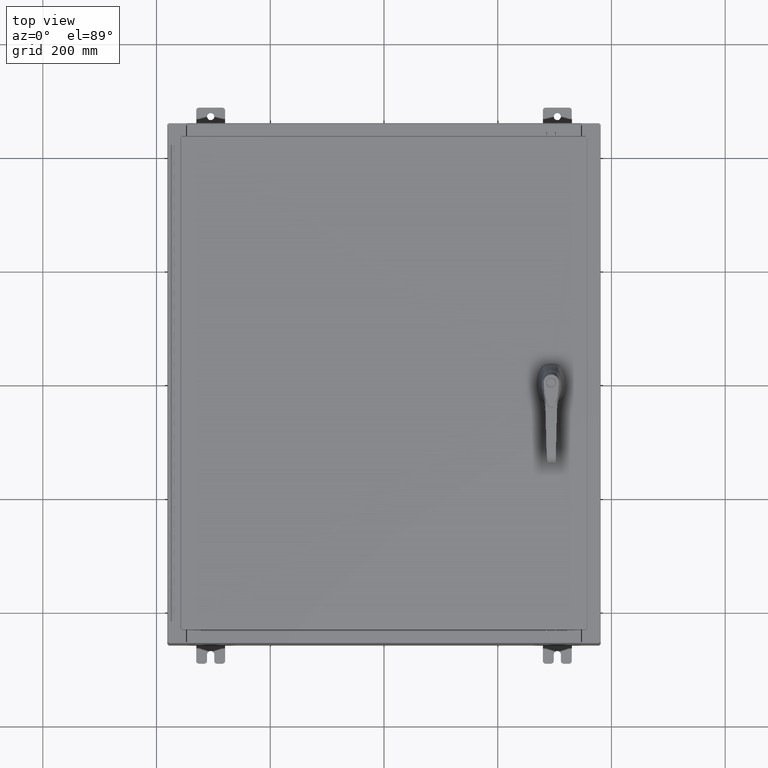
[diagram: clean part render]
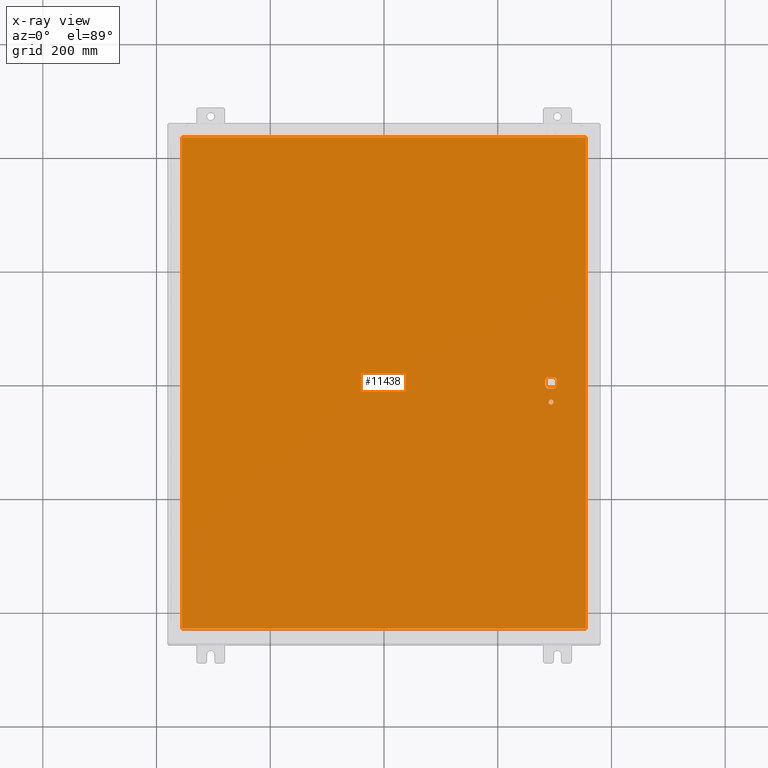
[diagram: x-ray — body ghosted, one internal face saturated and labeled with its STEP entity id]
A machine part, top view, then the same camera in x-ray: the body is ghosted and one INTERNAL B-rep face — a face not visible from any outside direction — is saturated and labeled: STEP entity #11438.
In plain terms, the highlighted planar face has unit normal (0, 0, -1).
Its self-contained STEP definition (entity closure, byte-faithful):
#347 = AXIS2_PLACEMENT_3D ( 'NONE', #56468, #122920, #66020 ) ;
#1404 = CIRCLE ( 'NONE', #32597, 0.1715000000000011500 ) ;
#1803 = CARTESIAN_POINT ( 'NONE',  ( 11.98099999999992000, 0.2002273707563075900, -0.07470000000000003000 ) ) ;
#2066 = EDGE_LOOP ( 'NONE', ( #65987, #48802, #47436, #47516, #116948, #107065, #111203, #35459 ) ) ;
#2647 = EDGE_LOOP ( 'NONE', ( #40714, #122168, #64566, #56022 ) ) ;
#3202 = DIRECTION ( 'NONE',  ( -0.0000000000000000000, -0.0000000000000000000, 1.000000000000000000 ) ) ;
#3658 = DIRECTION ( 'NONE',  ( -1.000000000000000000, -5.329070518200740300E-015, 0.0000000000000000000 ) ) ;
#4432 = VECTOR ( 'NONE', #84786, 39.37007874015748100 ) ;
#4434 = VERTEX_POINT ( 'NONE', #77992 ) ;
#4961 = EDGE_CURVE ( 'NONE', #81938, #92643, #69325, .T. ) ;
#5012 = VECTOR ( 'NONE', #29569, 39.37007874015748100 ) ;
#5488 = CARTESIAN_POINT ( 'NONE',  ( 0.0000000000000000000, -0.4029999999999252000, -0.07470000000000003000 ) ) ;
#7250 = AXIS2_PLACEMENT_3D ( 'NONE', #74835, #8933, #75253 ) ;
#7652 = DIRECTION ( 'NONE',  ( 1.000000000000000000, -0.0000000000000000000, -0.0000000000000000000 ) ) ;
#8933 = DIRECTION ( 'NONE',  ( 0.0000000000000000000, 0.0000000000000000000, -1.000000000000000000 ) ) ;
#9518 = EDGE_CURVE ( 'NONE', #81853, #81938, #36594, .T. ) ;
#9599 = CARTESIAN_POINT ( 'NONE',  ( 11.37777262924368300, -0.4029999999999250300, -0.07470000000000003000 ) ) ;
#11318 = VERTEX_POINT ( 'NONE', #63265 ) ;
#11438 = ADVANCED_FACE ( 'NONE', ( #34816, #82291, #104577 ), #37074, .T. ) ;
#11744 = CARTESIAN_POINT ( 'NONE',  ( 11.74949999999999400, -1.338000000000000100, -0.07470000000000003000 ) ) ;
#12354 = VERTEX_POINT ( 'NONE', #50561 ) ;
#14154 = VERTEX_POINT ( 'NONE', #19101 ) ;
#15005 = DIRECTION ( 'NONE',  ( 1.000000000000000000, 0.0000000000000000000, 0.0000000000000000000 ) ) ;
#16699 = DIRECTION ( 'NONE',  ( -0.0000000000000000000, -0.0000000000000000000, 1.000000000000000000 ) ) ;
#17695 = AXIS2_PLACEMENT_3D ( 'NONE', #73480, #16699, #82972 ) ;
#18466 = VERTEX_POINT ( 'NONE', #1803 ) ;
#18478 = CARTESIAN_POINT ( 'NONE',  ( 0.0000000000000000000, 0.4029999999999252000, -0.07470000000000003000 ) ) ;
#19101 = CARTESIAN_POINT ( 'NONE',  ( 11.37777262924368300, 0.4029999999999252000, -0.07470000000000003000 ) ) ;
#21827 = EDGE_CURVE ( 'NONE', #43509, #4434, #45252, .T. ) ;
#23674 = LINE ( 'NONE', #18478, #4432 ) ;
#27109 = DIRECTION ( 'NONE',  ( 0.0000000000000000000, 1.000000000000000000, 0.0000000000000000000 ) ) ;
#29569 = DIRECTION ( 'NONE',  ( 0.0000000000000000000, -1.000000000000000000, 0.0000000000000000000 ) ) ;
#30985 = VERTEX_POINT ( 'NONE', #36408 ) ;
#31888 = CARTESIAN_POINT ( 'NONE',  ( 11.57799999999999400, -1.338000000000000100, -0.07470000000000003000 ) ) ;
#32597 = AXIS2_PLACEMENT_3D ( 'NONE', #31888, #98212, #41451 ) ;
#34365 = AXIS2_PLACEMENT_3D ( 'NONE', #43802, #110218, #53318 ) ;
#34816 = FACE_BOUND ( 'NONE', #101219, .T. ) ;
#35166 = VECTOR ( 'NONE', #119315, 39.37007874015748100 ) ;
#35459 = ORIENTED_EDGE ( 'NONE', *, *, #21827, .T. ) ;
#36408 = CARTESIAN_POINT ( 'NONE',  ( 11.17500000000006600, 0.2002273707563075900, -0.07470000000000003000 ) ) ;
#36594 = LINE ( 'NONE', #121337, #58903 ) ;
#36649 = CARTESIAN_POINT ( 'NONE',  ( 13.99029999999999200, -17.00630000000000000, -0.07470000000000019700 ) ) ;
#37074 = PLANE ( 'NONE',  #7250 ) ;
#37365 = EDGE_CURVE ( 'NONE', #11318, #75518, #1404, .T. ) ;
#39331 = LINE ( 'NONE', #45307, #106120 ) ;
#40714 = ORIENTED_EDGE ( 'NONE', *, *, #4961, .F. ) ;
#40832 = EDGE_CURVE ( 'NONE', #18466, #48096, #42467, .T. ) ;
#41451 = DIRECTION ( 'NONE',  ( -1.000000000000000000, 0.0000000000000000000, 0.0000000000000000000 ) ) ;
#42467 = CIRCLE ( 'NONE', #17695, 0.4499999999999168000 ) ;
#43509 = VERTEX_POINT ( 'NONE', #9599 ) ;
#43802 = CARTESIAN_POINT ( 'NONE',  ( 11.57799999999999400, 0.0000000000000000000, -0.07470000000000003000 ) ) ;
#44021 = CARTESIAN_POINT ( 'NONE',  ( 13.99029999999999200, 17.00630000000000300, -0.07470000000000000300 ) ) ;
#44722 = CARTESIAN_POINT ( 'NONE',  ( 11.17500000000006600, -0.2002273707563079800, -0.07470000000000003000 ) ) ;
#45252 = LINE ( 'NONE', #5488, #118064 ) ;
#45307 = CARTESIAN_POINT ( 'NONE',  ( 11.98099999999992000, 6.538620706741751200E-014, -0.07470000000000003000 ) ) ;
#45751 = CIRCLE ( 'NONE', #34365, 0.4499999999999168000 ) ;
#46312 = CARTESIAN_POINT ( 'NONE',  ( -13.99030000000000700, -17.00630000000000000, -0.07470000000000000300 ) ) ;
#47436 = ORIENTED_EDGE ( 'NONE', *, *, #40832, .T. ) ;
#47516 = ORIENTED_EDGE ( 'NONE', *, *, #70602, .T. ) ;
#48096 = VERTEX_POINT ( 'NONE', #93935 ) ;
#48802 = ORIENTED_EDGE ( 'NONE', *, *, #55528, .F. ) ;
#50561 = CARTESIAN_POINT ( 'NONE',  ( -13.99030000000000700, 17.00630000000000300, -0.07470000000000000300 ) ) ;
#52645 = DIRECTION ( 'NONE',  ( -1.000000000000000000, -0.0000000000000000000, -0.0000000000000000000 ) ) ;
#53318 = DIRECTION ( 'NONE',  ( -1.000000000000000000, -1.776356839400246700E-015, 0.0000000000000000000 ) ) ;
#55528 = EDGE_CURVE ( 'NONE', #18466, #89464, #39331, .T. ) ;
#56022 = ORIENTED_EDGE ( 'NONE', *, *, #107998, .F. ) ;
#56468 = CARTESIAN_POINT ( 'NONE',  ( 11.57799999999999400, -1.338000000000000100, -0.07470000000000003000 ) ) ;
#58903 = VECTOR ( 'NONE', #7652, 39.37007874015748100 ) ;
#59962 = CARTESIAN_POINT ( 'NONE',  ( 11.57799999999999400, 0.0000000000000000000, -0.07470000000000003000 ) ) ;
#60408 = DIRECTION ( 'NONE',  ( -0.0000000000000000000, -0.0000000000000000000, 1.000000000000000000 ) ) ;
#62419 = CARTESIAN_POINT ( 'NONE',  ( -13.99030000000000700, 17.00630000000000000, -0.07470000000000019700 ) ) ;
#63265 = CARTESIAN_POINT ( 'NONE',  ( 11.40649999999999200, -1.338000000000000100, -0.07470000000000003000 ) ) ;
#64405 = DIRECTION ( 'NONE',  ( 5.457491617345625000E-015, -1.000000000000000000, 0.0000000000000000000 ) ) ;
#64566 = ORIENTED_EDGE ( 'NONE', *, *, #72705, .F. ) ;
#65987 = ORIENTED_EDGE ( 'NONE', *, *, #82132, .T. ) ;
#66020 = DIRECTION ( 'NONE',  ( -1.000000000000000000, 0.0000000000000000000, 0.0000000000000000000 ) ) ;
#66342 = VECTOR ( 'NONE', #27109, 39.37007874015748100 ) ;
#69325 = LINE ( 'NONE', #36649, #66342 ) ;
#69503 = DIRECTION ( 'NONE',  ( -1.000000000000000000, -1.776356839400246700E-015, 0.0000000000000000000 ) ) ;
#70273 = EDGE_CURVE ( 'NONE', #71459, #43509, #45751, .T. ) ;
#70602 = EDGE_CURVE ( 'NONE', #48096, #14154, #23674, .T. ) ;
#70734 = CARTESIAN_POINT ( 'NONE',  ( 11.98099999999992000, -0.2002273707563067300, -0.07470000000000003000 ) ) ;
#71459 = VERTEX_POINT ( 'NONE', #44722 ) ;
#72705 = EDGE_CURVE ( 'NONE', #12354, #81853, #88652, .T. ) ;
#72908 = EDGE_CURVE ( 'NONE', #30985, #71459, #108909, .T. ) ;
#73480 = CARTESIAN_POINT ( 'NONE',  ( 11.57799999999999400, 0.0000000000000000000, -0.07470000000000003000 ) ) ;
#74761 = AXIS2_PLACEMENT_3D ( 'NONE', #117321, #60408, #3658 ) ;
#74835 = CARTESIAN_POINT ( 'NONE',  ( 0.0000000000000000000, 0.0000000000000000000, -0.07470000000000000300 ) ) ;
#75253 = DIRECTION ( 'NONE',  ( -1.000000000000000000, 0.0000000000000000000, -0.0000000000000000000 ) ) ;
#75518 = VERTEX_POINT ( 'NONE', #11744 ) ;
#77992 = CARTESIAN_POINT ( 'NONE',  ( 11.77822737075630300, -0.4029999999999252000, -0.07470000000000003000 ) ) ;
#81141 = CIRCLE ( 'NONE', #74761, 0.4499999999999168000 ) ;
#81853 = VERTEX_POINT ( 'NONE', #46312 ) ;
#81938 = VERTEX_POINT ( 'NONE', #95199 ) ;
#82132 = EDGE_CURVE ( 'NONE', #4434, #89464, #100276, .T. ) ;
#82291 = FACE_OUTER_BOUND ( 'NONE', #2647, .T. ) ;
#82972 = DIRECTION ( 'NONE',  ( -1.000000000000000000, -5.329070518200740300E-015, 0.0000000000000000000 ) ) ;
#84743 = AXIS2_PLACEMENT_3D ( 'NONE', #59962, #3202, #69503 ) ;
#84786 = DIRECTION ( 'NONE',  ( -1.000000000000000000, 0.0000000000000000000, 0.0000000000000000000 ) ) ;
#86493 = CIRCLE ( 'NONE', #347, 0.1715000000000011500 ) ;
#87657 = EDGE_CURVE ( 'NONE', #14154, #30985, #81141, .T. ) ;
#88652 = LINE ( 'NONE', #62419, #35166 ) ;
#89464 = VERTEX_POINT ( 'NONE', #70734 ) ;
#91892 = EDGE_CURVE ( 'NONE', #75518, #11318, #86493, .T. ) ;
#92643 = VERTEX_POINT ( 'NONE', #44021 ) ;
#93935 = CARTESIAN_POINT ( 'NONE',  ( 11.77822737075630300, 0.4029999999999250300, -0.07470000000000003000 ) ) ;
#95199 = CARTESIAN_POINT ( 'NONE',  ( 13.99029999999999200, -17.00630000000000000, -0.07470000000000000300 ) ) ;
#95892 = CARTESIAN_POINT ( 'NONE',  ( 11.17500000000006600, 0.0000000000000000000, -0.07470000000000003000 ) ) ;
#97969 = LINE ( 'NONE', #109962, #120331 ) ;
#98212 = DIRECTION ( 'NONE',  ( -0.0000000000000000000, -0.0000000000000000000, 1.000000000000000000 ) ) ;
#100276 = CIRCLE ( 'NONE', #84743, 0.4499999999999168000 ) ;
#101219 = EDGE_LOOP ( 'NONE', ( #117860, #112864 ) ) ;
#104577 = FACE_BOUND ( 'NONE', #2066, .T. ) ;
#106120 = VECTOR ( 'NONE', #64405, 39.37007874015748100 ) ;
#107065 = ORIENTED_EDGE ( 'NONE', *, *, #72908, .T. ) ;
#107998 = EDGE_CURVE ( 'NONE', #92643, #12354, #97969, .T. ) ;
#108909 = LINE ( 'NONE', #95892, #5012 ) ;
#109962 = CARTESIAN_POINT ( 'NONE',  ( 13.99029999999999200, 17.00630000000000300, -0.07470000000000129300 ) ) ;
#110218 = DIRECTION ( 'NONE',  ( -0.0000000000000000000, -0.0000000000000000000, 1.000000000000000000 ) ) ;
#111203 = ORIENTED_EDGE ( 'NONE', *, *, #70273, .T. ) ;
#112864 = ORIENTED_EDGE ( 'NONE', *, *, #37365, .T. ) ;
#116948 = ORIENTED_EDGE ( 'NONE', *, *, #87657, .T. ) ;
#117321 = CARTESIAN_POINT ( 'NONE',  ( 11.57799999999999400, 0.0000000000000000000, -0.07470000000000003000 ) ) ;
#117860 = ORIENTED_EDGE ( 'NONE', *, *, #91892, .T. ) ;
#118064 = VECTOR ( 'NONE', #15005, 39.37007874015748100 ) ;
#119315 = DIRECTION ( 'NONE',  ( 0.0000000000000000000, -1.000000000000000000, 0.0000000000000000000 ) ) ;
#120331 = VECTOR ( 'NONE', #52645, 39.37007874015748100 ) ;
#121337 = CARTESIAN_POINT ( 'NONE',  ( -13.99030000000000700, -17.00630000000000000, -0.07470000000000019700 ) ) ;
#122168 = ORIENTED_EDGE ( 'NONE', *, *, #9518, .F. ) ;
#122920 = DIRECTION ( 'NONE',  ( -0.0000000000000000000, -0.0000000000000000000, 1.000000000000000000 ) ) ;